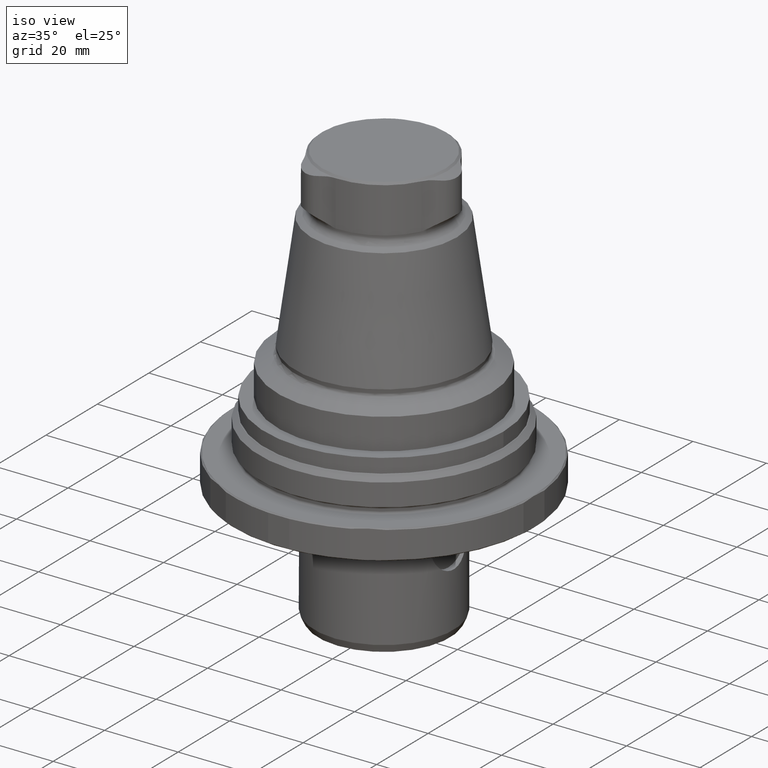
[diagram: clean part render]
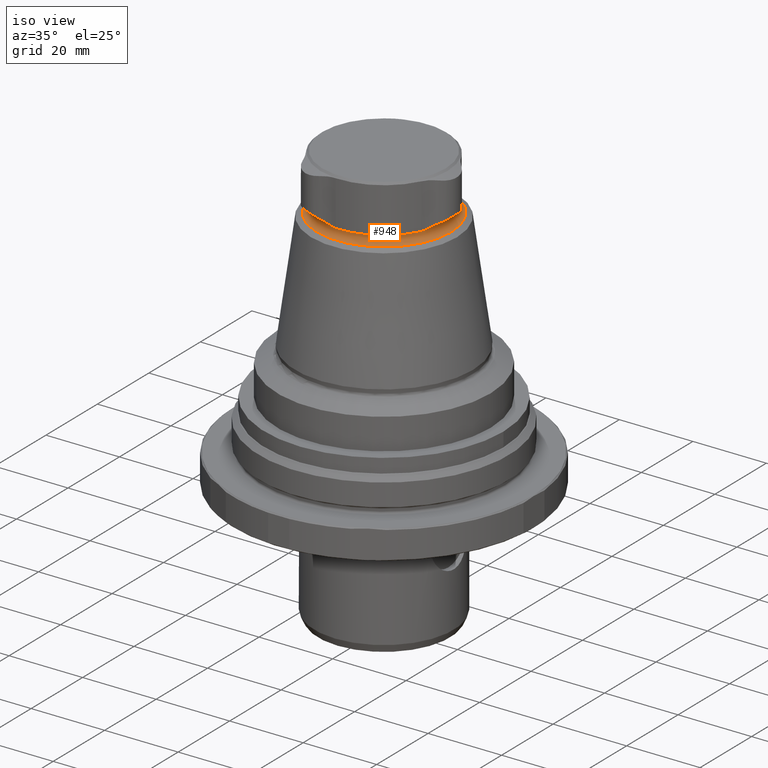
[diagram: same view with one face highlighted and labeled with its STEP entity id]
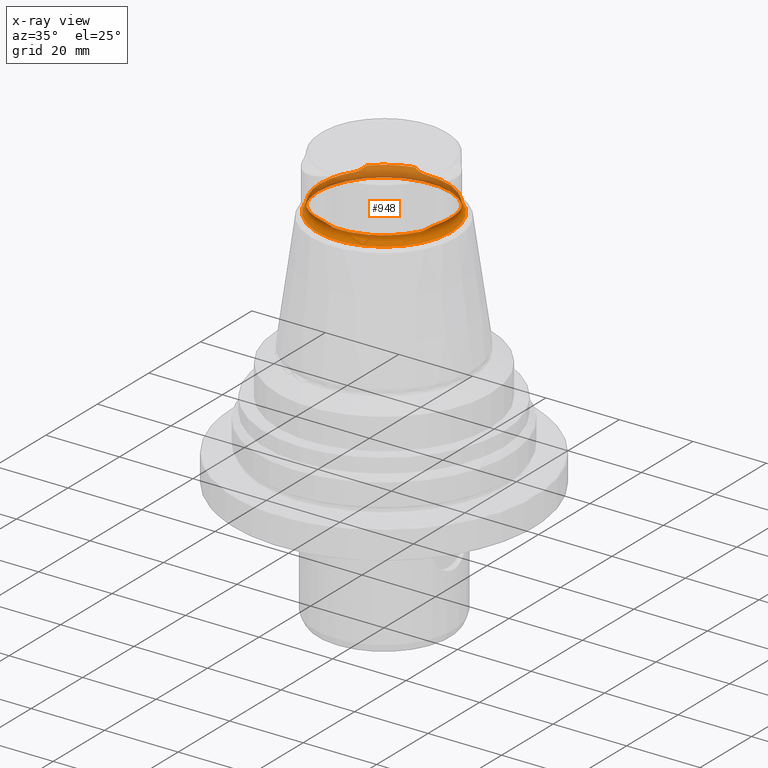
[diagram: x-ray of the same camera — body ghosted, the highlighted face saturated]
A machine part, iso view. The second image highlights one B-rep face of the part: STEP entity #948.
The next image is the same camera in x-ray: the body ghosted, the highlighted face saturated — about 40% of this face is hidden behind the body in this view.
In plain terms, the highlighted toroidal blend (fillet) surface has major radius 19.28 mm and minor (blend) radius 2 mm.
Its self-contained STEP definition (entity closure, byte-faithful):
#20=TOROIDAL_SURFACE('',#1045,19.28,2.);
#68=CIRCLE('',#1029,17.9944247806269);
#69=CIRCLE('',#1032,17.38);
#70=CIRCLE('',#1035,17.9944247806269);
#71=CIRCLE('',#1038,17.38);
#72=CIRCLE('',#1041,17.9944247806269);
#73=CIRCLE('',#1044,17.38);
#74=CIRCLE('',#1046,18.28);
#271=ORIENTED_EDGE('',*,*,#495,.F.);
#272=ORIENTED_EDGE('',*,*,#494,.T.);
#273=ORIENTED_EDGE('',*,*,#493,.T.);
#274=ORIENTED_EDGE('',*,*,#490,.T.);
#275=ORIENTED_EDGE('',*,*,#489,.T.);
#276=ORIENTED_EDGE('',*,*,#487,.T.);
#277=ORIENTED_EDGE('',*,*,#485,.T.);
#278=ORIENTED_EDGE('',*,*,#482,.T.);
#279=ORIENTED_EDGE('',*,*,#481,.T.);
#280=ORIENTED_EDGE('',*,*,#479,.T.);
#281=ORIENTED_EDGE('',*,*,#477,.T.);
#282=ORIENTED_EDGE('',*,*,#474,.T.);
#283=ORIENTED_EDGE('',*,*,#473,.T.);
#473=EDGE_CURVE('',#599,#600,#679,.T.);
#474=EDGE_CURVE('',#601,#599,#68,.T.);
#477=EDGE_CURVE('',#602,#601,#681,.T.);
#479=EDGE_CURVE('',#603,#602,#69,.T.);
#481=EDGE_CURVE('',#604,#603,#683,.T.);
#482=EDGE_CURVE('',#605,#604,#70,.T.);
#485=EDGE_CURVE('',#606,#605,#685,.T.);
#487=EDGE_CURVE('',#607,#606,#71,.T.);
#489=EDGE_CURVE('',#608,#607,#687,.T.);
#490=EDGE_CURVE('',#609,#608,#72,.T.);
#493=EDGE_CURVE('',#610,#609,#689,.T.);
#494=EDGE_CURVE('',#600,#610,#73,.T.);
#495=EDGE_CURVE('',#611,#611,#74,.T.);
#599=VERTEX_POINT('',#1576);
#600=VERTEX_POINT('',#1578);
#601=VERTEX_POINT('',#1586);
#602=VERTEX_POINT('',#1593);
#603=VERTEX_POINT('',#1601);
#604=VERTEX_POINT('',#1608);
#605=VERTEX_POINT('',#1616);
#606=VERTEX_POINT('',#1623);
#607=VERTEX_POINT('',#1631);
#608=VERTEX_POINT('',#1638);
#609=VERTEX_POINT('',#1646);
#610=VERTEX_POINT('',#1653);
#611=VERTEX_POINT('',#1663);
#679=B_SPLINE_CURVE_WITH_KNOTS('',3,(#1579,#1580,#1581,#1582,#1583),
 .UNSPECIFIED.,.F.,.F.,(4,1,4),(6.35686144103671E-7,0.0015978311918001,
0.00319502669745609),.UNSPECIFIED.);
#681=B_SPLINE_CURVE_WITH_KNOTS('',3,(#1594,#1595,#1596,#1597,#1598),
 .UNSPECIFIED.,.F.,.F.,(4,1,4),(1.97137655947821E-7,0.00159333802635267,
0.00318647891504939),.UNSPECIFIED.);
#683=B_SPLINE_CURVE_WITH_KNOTS('',3,(#1609,#1610,#1611,#1612,#1613),
 .UNSPECIFIED.,.F.,.F.,(4,1,4),(6.35686110278571E-7,0.00159783085864817,
0.00319502603118605),.UNSPECIFIED.);
#685=B_SPLINE_CURVE_WITH_KNOTS('',3,(#1624,#1625,#1626,#1627,#1628),
 .UNSPECIFIED.,.F.,.F.,(4,1,4),(2.20521440774518E-7,0.00159336113449156,
0.00318650174754235),.UNSPECIFIED.);
#687=B_SPLINE_CURVE_WITH_KNOTS('',3,(#1639,#1640,#1641,#1642,#1643),
 .UNSPECIFIED.,.F.,.F.,(4,1,4),(6.3568605650328E-7,0.00159783032874763,
0.00319502497143876),.UNSPECIFIED.);
#689=B_SPLINE_CURVE_WITH_KNOTS('',3,(#1654,#1655,#1656,#1657,#1658),
 .UNSPECIFIED.,.F.,.F.,(4,1,4),(2.35223058471433E-7,0.00159337566279852,
0.00318651610253857),.UNSPECIFIED.);
#736=EDGE_LOOP('',(#271));
#737=EDGE_LOOP('',(#272,#273,#274,#275,#276,#277,#278,#279,#280,#281,#282,
#283));
#831=FACE_BOUND('',#736,.T.);
#832=FACE_BOUND('',#737,.T.);
#948=ADVANCED_FACE('',(#831,#832),#20,.F.);
#1029=AXIS2_PLACEMENT_3D('',#1585,#1187,#1188);
#1032=AXIS2_PLACEMENT_3D('',#1602,#1195,#1196);
#1035=AXIS2_PLACEMENT_3D('',#1615,#1201,#1202);
#1038=AXIS2_PLACEMENT_3D('',#1632,#1209,#1210);
#1041=AXIS2_PLACEMENT_3D('',#1645,#1215,#1216);
#1044=AXIS2_PLACEMENT_3D('',#1660,#1222,#1223);
#1045=AXIS2_PLACEMENT_3D('',#1661,#1224,#1225);
#1046=AXIS2_PLACEMENT_3D('',#1662,#1226,#1227);
#1187=DIRECTION('',(1.22461692971323E-16,-7.49836836562635E-33,-1.));
#1188=DIRECTION('',(-1.,6.12303176911189E-17,-1.22461692971323E-16));
#1195=DIRECTION('',(1.22461692971323E-16,-7.49836836562635E-33,-1.));
#1196=DIRECTION('',(-1.,6.12303176911189E-17,-1.22461692971323E-16));
#1201=DIRECTION('',(1.22461692971323E-16,-7.49836836562635E-33,-1.));
#1202=DIRECTION('',(-1.,6.12303176911189E-17,-1.22461692971323E-16));
#1209=DIRECTION('',(1.22461692971323E-16,-7.49836836562635E-33,-1.));
#1210=DIRECTION('',(-1.,6.12303176911189E-17,-1.22461692971323E-16));
#1215=DIRECTION('',(1.22461692971323E-16,-7.49836836562635E-33,-1.));
#1216=DIRECTION('',(-1.,6.12303176911189E-17,-1.22461692971323E-16));
#1222=DIRECTION('',(1.22461692971323E-16,-7.49836836562635E-33,-1.));
#1223=DIRECTION('',(-1.,6.12303176911189E-17,-1.22461692971323E-16));
#1224=DIRECTION('',(1.22461692971323E-16,-7.49836836562635E-33,-1.));
#1225=DIRECTION('',(-1.,6.12303176911189E-17,-1.22461692971323E-16));
#1226=DIRECTION('',(1.22461692971323E-16,-7.49836836562635E-33,-1.));
#1227=DIRECTION('',(-1.,6.12303176911189E-17,-1.22461692971323E-16));
#1576=CARTESIAN_POINT('',(-13.1844579384725,-12.2461990860139,61.0160728241915));
#1578=CARTESIAN_POINT('',(-14.5433864753958,-9.51600282825072,60.1084837377934));
#1579=CARTESIAN_POINT('',(-13.1844579384718,-12.2461990860133,61.0160728241922));
#1580=CARTESIAN_POINT('',(-13.3557624744756,-11.7684289393792,60.8485594541288));
#1581=CARTESIAN_POINT('',(-13.7430631802596,-10.8589171321317,60.4659393934881));
#1582=CARTESIAN_POINT('',(-14.2485410599591,-9.96661753534753,60.1084837377905));
#1583=CARTESIAN_POINT('',(-14.5433864753951,-9.51600282825074,60.1084837377904));
#1585=CARTESIAN_POINT('',(1.46769010863797E-15,-8.98671316240156E-32,61.0160728241915));
#1586=CARTESIAN_POINT('',(-4.0132905390536,-17.5411750528516,61.0160728241915));
#1593=CARTESIAN_POINT('',(-0.969406954051809,-17.3529435588731,60.1084837377934));
#1594=CARTESIAN_POINT('',(-0.96940695405181,-17.3529435588731,60.1084837377934));
#1595=CARTESIAN_POINT('',(-1.50816065140855,-17.3228465566575,60.1084837377934));
#1596=CARTESIAN_POINT('',(-2.5276528809224,-17.3310864051679,60.4643411911177));
#1597=CARTESIAN_POINT('',(-3.51330235117727,-17.4505398563382,60.8483666425664));
#1598=CARTESIAN_POINT('',(-4.0132905390535,-17.541175052851,61.016072824192));
#1601=CARTESIAN_POINT('',(15.5127934294476,-7.83694073062241,60.1084837377934));
#1602=CARTESIAN_POINT('',(-7.64773027486394E-17,4.68272954345907E-33,60.1084837377934));
#1608=CARTESIAN_POINT('',(17.1977484775261,-5.29497596683764,61.0160728241915));
#1609=CARTESIAN_POINT('',(17.1977484775253,-5.29497596683733,61.0160728241922));
#1610=CARTESIAN_POINT('',(16.8696397123536,-5.6822150599481,60.8485594801569));
#1611=CARTESIAN_POINT('',(16.2756298563554,-6.47238305001316,60.4659395692859));
#1612=CARTESIAN_POINT('',(15.7556146861175,-7.35628939938424,60.1084837377908));
#1613=CARTESIAN_POINT('',(15.5127934294473,-7.83694073062188,60.1084837377907));
#1615=CARTESIAN_POINT('',(1.46769010863797E-15,-8.98671316240156E-32,61.0160728241915));
#1616=CARTESIAN_POINT('',(17.1977484775261,5.29497596683763,61.0160728241915));
#1623=CARTESIAN_POINT('',(15.5127934294476,7.8369407306223,60.1084837377934));
#1624=CARTESIAN_POINT('',(15.5127934294476,7.8369407306223,60.1084837377934));
#1625=CARTESIAN_POINT('',(15.7561051581389,7.35531853697712,60.1084837377934));
#1626=CARTESIAN_POINT('',(16.2729875744631,6.47653147093607,60.464341093761));
#1627=CARTESIAN_POINT('',(16.8692619580383,5.68266089149592,60.8483666206682));
#1628=CARTESIAN_POINT('',(17.1977484775256,5.29497596683744,61.016072824192));
#1631=CARTESIAN_POINT('',(-0.969406954051804,17.3529435588731,60.1084837377934));
#1632=CARTESIAN_POINT('',(-7.64773027486394E-17,4.68272954345907E-33,60.1084837377934));
#1638=CARTESIAN_POINT('',(-4.01329053905358,17.5411750528516,61.0160728241915));
#1639=CARTESIAN_POINT('',(-4.01329053905341,17.5411750528507,61.0160728241922));
#1640=CARTESIAN_POINT('',(-3.51387738791884,17.4506440959366,60.8485595215557));
#1641=CARTESIAN_POINT('',(-2.53256722910757,17.3313005024,60.4659398488993));
#1642=CARTESIAN_POINT('',(-1.50707448211518,17.3229072345509,60.1084837377914));
#1643=CARTESIAN_POINT('',(-0.969406954052059,17.3529435588727,60.1084837377913));
#1645=CARTESIAN_POINT('',(1.46769010863797E-15,-8.98671316240156E-32,61.0160728241915));
#1646=CARTESIAN_POINT('',(-13.1844579384725,12.2461990860139,61.0160728241915));
#1653=CARTESIAN_POINT('',(-14.5433864753958,9.51600282825071,60.1084837377934));
#1654=CARTESIAN_POINT('',(-14.5433864753958,9.51600282825071,60.1084837377934));
#1655=CARTESIAN_POINT('',(-14.2479455533474,9.96752765306905,60.1084837377934));
#1656=CARTESIAN_POINT('',(-13.7453345115463,10.8545549561262,60.4643410325569));
#1657=CARTESIAN_POINT('',(-13.3559596862253,11.7678789137431,60.8483666069014));
#1658=CARTESIAN_POINT('',(-13.1844579384721,12.2461990860136,61.016072824192));
#1660=CARTESIAN_POINT('',(-7.64773027486394E-17,4.68272954345907E-33,60.1084837377934));
#1661=CARTESIAN_POINT('',(0.,0.,59.4839839379536));
#1662=CARTESIAN_POINT('',(1.86742218163645E-15,-1.14342853445042E-31,57.7519331303847));
#1663=CARTESIAN_POINT('',(-18.28,1.11929020739365E-15,57.7519331303847));